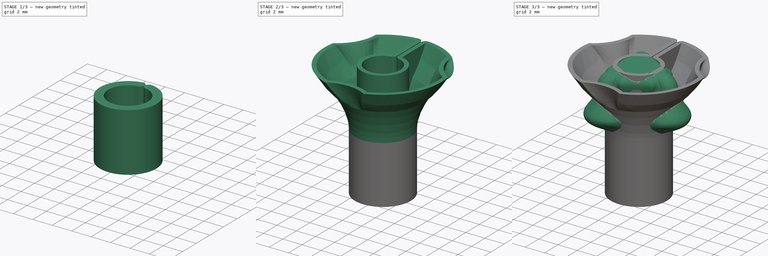
[diagram: build sequence overview — one tinted view per stage of 3, left to right]
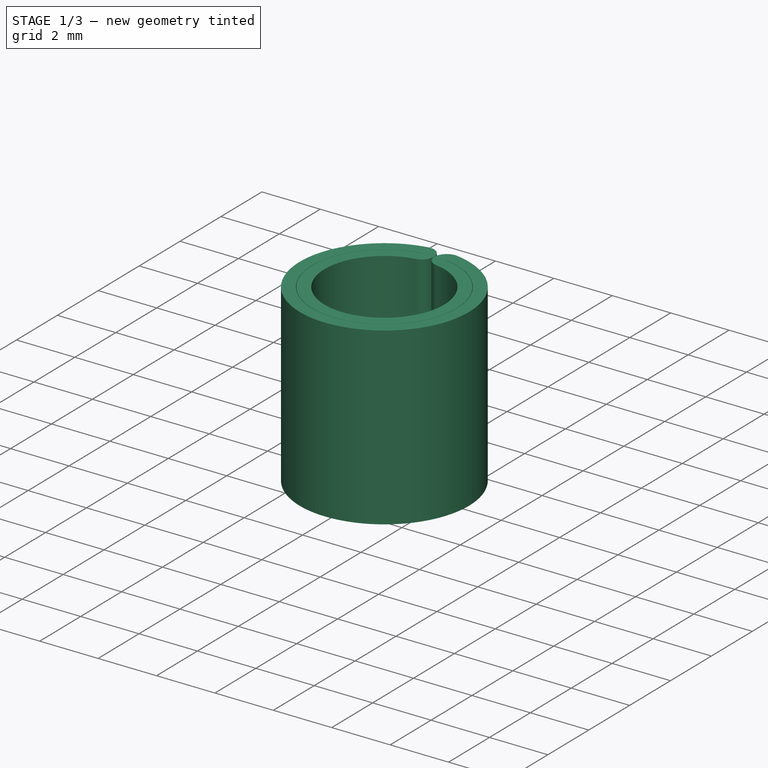
[diagram: stage 1 of 3 — iso view after this stage's code; geometry added in this stage tinted green]
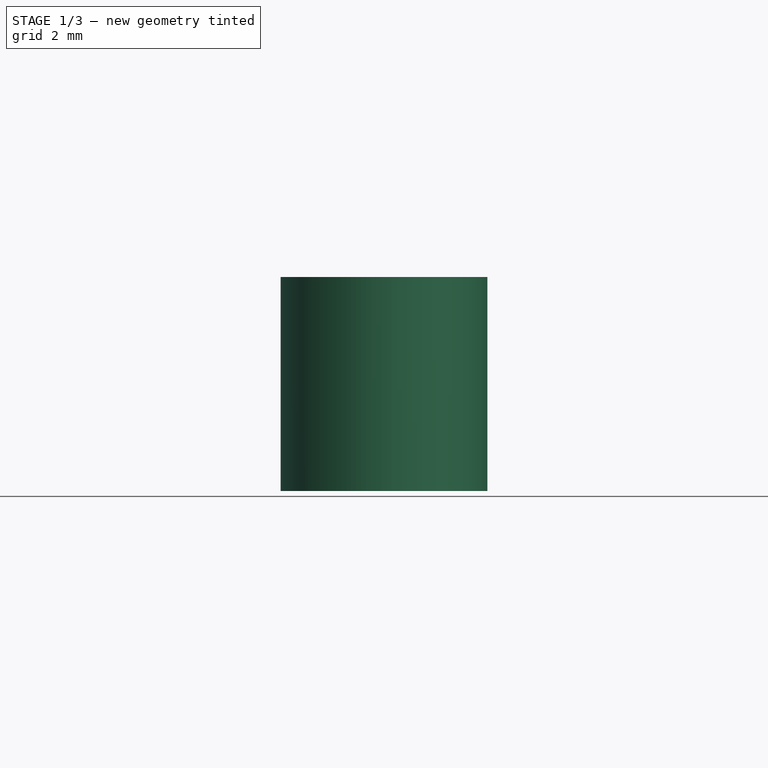
[diagram: stage 1 of 3 — front view after this stage's code; geometry added in this stage tinted green]
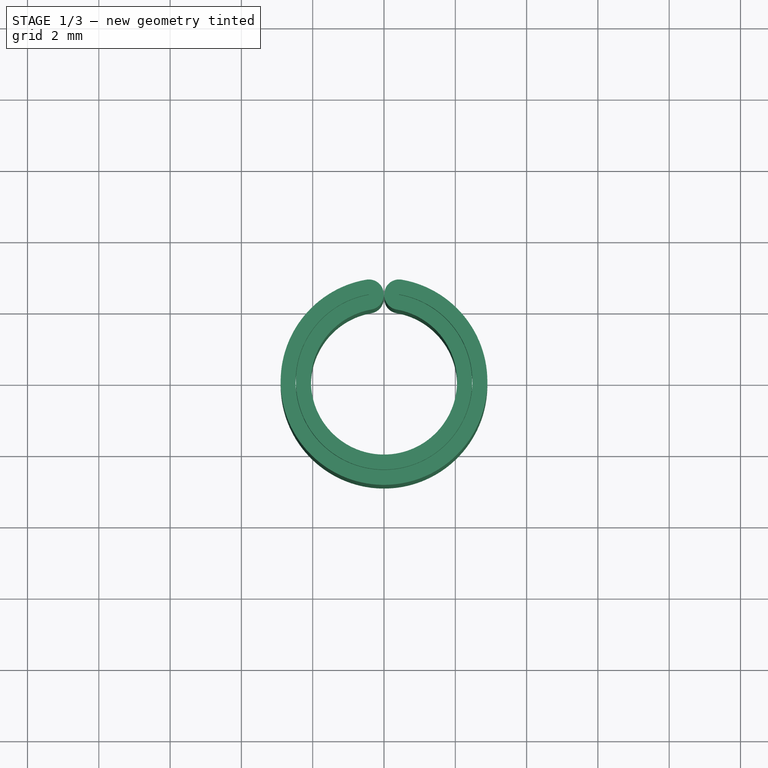
[diagram: stage 1 of 3 — top view after this stage's code; geometry added in this stage tinted green]
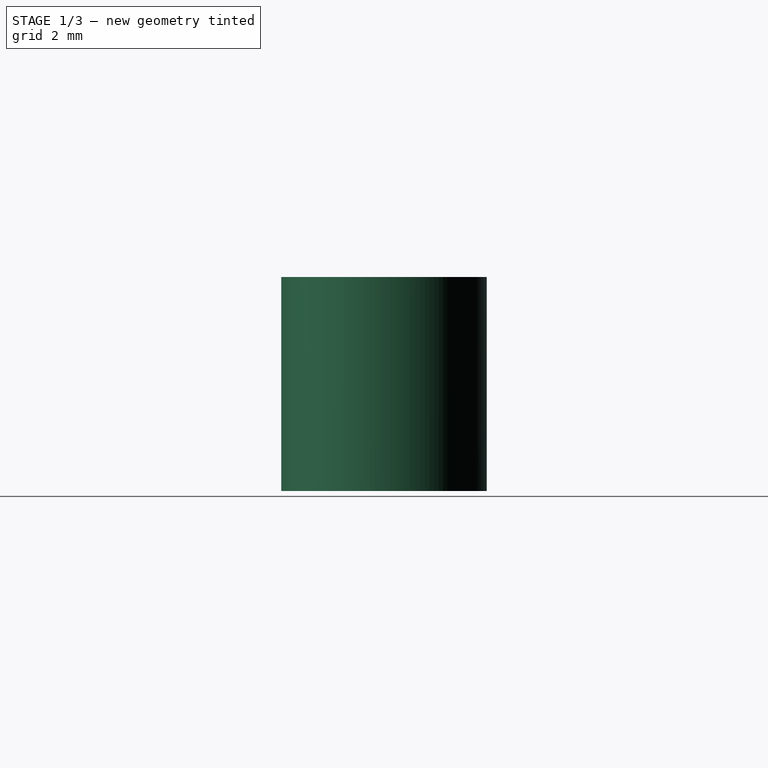
[diagram: stage 1 of 3 — right view after this stage's code; geometry added in this stage tinted green]
FCSTD DOCUMENT  (FreeCAD 1.2R20260113 (Git shallow))
Label: BIC Pen
License: Creative Commons Attribution-NonCommercial-ShareAlike 4.0
LicenseURL: https://creativecommons.org/licenses/by-nc-sa/4.0/
objects: Sketcher::SketchObject×16, PartDesign::SubShapeBinder×7, App::Point×4, PartDesign::AdditiveLoft×4, PartDesign::Body×4, PartDesign::Revolution×1, PartDesign::Pad×1
note: 61 computed .brp shape members not serialized (recipe doc carries the construction recipe); baked Part::Feature solids carry a one-line shape summary decoded from their .brp

FEATURE [PartDesign::Body] Body  label="Corps"
  AllowCompound = false
  Group = -> [Sketch,Binder,AdditiveLoft,Sketch001,Binder003,Sketch002,AdditiveLoft001,Sketch004,Binder001,Binder002,Sketch003,Sketch005]
  Origin = -> Origin
  Tip = -> AdditiveLoft001
FEATURE [App::Point] Origin003  label="Origine002"
  Role = Origin
FEATURE [Sketcher::SketchObject] Sketch006
  ArcFitTolerance = 1e-06
  AttachmentSupport = -> [Origin002]
  ExternalTypes = [0]
  FullyConstrained = false
  MakeInternals = false
  MapMode = 5
  Placement = pos=(0,0,0) rot=(0.57735,0.57735,0.57735;2.0944rad)
  sketch-geometry (10):
    g0: LineSegment StartX=15.9493 StartY=0 StartZ=0 EndX=14.0072 EndY=0 EndZ=0
    g1: LineSegment StartX=14.0072 StartY=0 StartZ=0 EndX=17.4661 EndY=12.6381 EndZ=0
    g2: ArcOfCircle CenterX=9.89089 CenterY=14.7112 CenterZ=0 NormalX=0 NormalY=0 NormalZ=1 AngleXU=0 Radius=7.85374 StartAngle=6.01604 EndAngle=6.84652
    g3: LineSegment StartX=16.5311 StartY=18.9052 StartZ=0 EndX=10.2591 EndY=28.8353 EndZ=0
    g4: ArcOfCircle CenterX=17.7718 CenterY=33.5804 CenterZ=0 NormalX=0 NormalY=0 NormalZ=1 AngleXU=0 Radius=8.88574 StartAngle=3.12108 EndAngle=3.70493
    g5: LineSegment StartX=8.88797 StartY=33.7627 StartZ=0 EndX=10.7608 EndY=33.7242 EndZ=0
    g6: ArcOfCircle CenterX=17.7718 CenterY=33.5804 CenterZ=0 NormalX=0 NormalY=0 NormalZ=1 AngleXU=0 Radius=7.01253 StartAngle=3.12108 EndAngle=3.70493
    g7: LineSegment StartX=11.8429 StartY=29.8356 StartZ=0 EndX=18.1148 EndY=19.9055 EndZ=0
    g8: ArcOfCircle CenterX=9.89089 CenterY=14.7112 CenterZ=0 NormalX=0 NormalY=0 NormalZ=1 AngleXU=0 Radius=9.72695 StartAngle=6.01604 EndAngle=6.84652
    g9: LineSegment StartX=19.2728 StartY=12.1436 StartZ=0 EndX=15.9493 EndY=0 EndZ=0
  constraints (16):
    c: PointOnObject(g0,g-1)
    c: PointOnObject(g0,g-1)
    c: Coincident(g0,g1)
    c: Tangent(g1,g2) = -1.5708
    c: Tangent(g2,g3) = -1.5708
    c: Tangent(g3,g4) = 1.5708
    c: Coincident(g4,g5)
    c: Perpendicular(g5,g6) = 4.71239
    c: Tangent(g6,g7) = -1.5708
    c: Tangent(g7,g8) = 1.5708
    c: Tangent(g8,g9) = 1.5708
    c: Coincident(g0,g9)
    c: Coincident(g4,g6)
    c: Coincident(g2,g8)
    c: Parallel(g1,g9)
    c: Parallel(g3,g7)
FEATURE [Sketcher::SketchObject] Sketch008
  ArcFitTolerance = 1e-06
  AttachmentSupport = -> [Origin002]
  ExternalGeometry = -> [Sketch006]
  ExternalTypes = [0]
  FullyConstrained = false
  MakeInternals = false
  MapMode = 5
  sketch-geometry (1):
    g0: ArcOfEllipse CenterX=0 CenterY=0 CenterZ=0 NormalX=0 NormalY=0 NormalZ=1 MajorRadius=14.0207 MinorRadius=9.9868 AngleXU=1.61523 StartAngle=6.22161 EndAngle=10.8435
  constraints (2):
    c: Coincident(g0,g-1)
    c: PointOnObject(g-3,g0)
FEATURE [Sketcher::SketchObject] Sketch009
  ArcFitTolerance = 1e-06
  AttachmentSupport = -> [Origin002]
  ExternalGeometry = -> [Sketch008]
  ExternalTypes = [0]
  FullyConstrained = false
  MakeInternals = false
  MapMode = 5
  sketch-geometry (1):
    g0: ArcOfCircle CenterX=13.781 CenterY=-1.93033 CenterZ=0 NormalX=0 NormalY=0 NormalZ=1 AngleXU=0 Radius=3.83281 StartAngle=1.41638 EndAngle=3.07726
  constraints (1):
    c: Tangent(g0,g-3) = 1.5708
FEATURE [PartDesign::Body] Body001  label="Corps001"
  AllowCompound = false
  Group = -> [Sketch006,Sketch008,Sketch009]
  Origin = -> Origin002
FEATURE [App::Point] Origin005  label="Origine004"
  Role = Origin
FEATURE [App::Point] Origin007  label="Origine006"
  Role = Origin
FEATURE [Sketcher::SketchObject] Sketch013
  ArcFitTolerance = 1e-06
  AttachmentSupport = -> [Origin006]
  ExternalTypes = [0]
  FullyConstrained = true
  MakeInternals = false
  MapMode = 5
  Placement = pos=(0,0,0) rot=(0.57735,0.57735,0.57735;2.0944rad)
  expr: Constraints[23] = 3.9 / 2
  sketch-geometry (10):
    g0: LineSegment StartX=2.5 StartY=0 StartZ=0 EndX=2.5 EndY=-1.5 EndZ=0
    g1: ArcOfCircle CenterX=1.5 CenterY=-1.5 CenterZ=0 NormalX=0 NormalY=0 NormalZ=1 AngleXU=0 Radius=1 StartAngle=6.05542 EndAngle=6.28319
    g2: LineSegment StartX=2.47417 StartY=-1.7258 StartZ=0 EndX=0.681921 EndY=-9.45806 EndZ=0
    g3: ArcOfCircle CenterX=0 CenterY=-9.3 CenterZ=0 NormalX=0 NormalY=0 NormalZ=1 AngleXU=0 Radius=0.7 StartAngle=4.71239 EndAngle=6.05542
    g4: LineSegment StartX=-1e-16 StartY=-10 StartZ=0 EndX=0 EndY=122 EndZ=0
    g5: LineSegment StartX=0 StartY=122 StartZ=0 EndX=1.5 EndY=122 EndZ=0
    g6: LineSegment StartX=1.5 StartY=122 StartZ=0 EndX=1.5 EndY=9 EndZ=0
    g7: LineSegment StartX=1.5 StartY=9 StartZ=0 EndX=1.95 EndY=9 EndZ=0
    g8: LineSegment StartX=1.95 StartY=9 StartZ=0 EndX=1.95 EndY=0 EndZ=0
    g9: LineSegment StartX=1.95 StartY=0 StartZ=0 EndX=2.5 EndY=0 EndZ=0
  constraints (29):
    c: PointOnObject(g0,g-1)
    c: Vertical(g0)
    c: Tangent(g0,g1) = 1.5708
    c: Tangent(g1,g2) = 1.5708
    c: Tangent(g2,g3) = 1.5708
    c: PointOnObject(g3,g-2)
    c: PointOnObject(g4,g-2)
    c: Coincident(g4,g5)
    c: Coincident(g5,g6)
    c: Vertical(g6)
    c: Coincident(g6,g7)
    c: Horizontal(g7)
    c: Coincident(g7,g8)
    c: Coincident(g8,g9)
    c: Coincident(g9,g0)
    c: Horizontal(g9)
    c: Vertical(g8)
    c: Distance(g8,g8) = 9
    c: Distance(g4,g-1) = 122
    c: Horizontal(g5)
    c: Coincident(g3,g4)
    c: PointOnObject(g3,g4)
    c: Distance(g6,g4) = 1.5
    c: Distance(g7,g4) = 1.95
    c: Distance(g0,g-1) = 2.5
    c: Radius(g3) = 0.7
    c: Distance(g3,g-1) = 10
    c: Distance(g0,g0) = 1.5
    c: Radius(g1) = 1
FEATURE [PartDesign::Revolution] Revolution
  Angle = 360
  Angle2 = 0
  Axis = (0,0,1)
  Base = (0,0,0)
  FuseOrder = 0
  Profile = -> Sketch013
  ReferenceAxis = -> Sketch013 [V_Axis]
  Refine = true
  Reversed = true
  Suppressed = false
  Type = 0
FEATURE [PartDesign::Body] Body003  label="Corps003"
  AllowCompound = false
  Group = -> [Sketch013,Revolution]
  Origin = -> Origin006
  Tip = -> Revolution
FEATURE [PartDesign::SubShapeBinder] Binder004  label="Mine"
  BindCopyOnChange = 0
  BindMode = 0
  ClaimChildren = false
  Context = -> Body002 [Binder004.]
  Fuse = false
  MakeFace = true
  OffsetFill = false
  OffsetIntersection = false
  OffsetJoinType = 0
  OffsetOpenResult = false
  PartialLoad = false
  Refine = true
  Relative = true
  Support = -> [Body003]
  _Version = 2
FEATURE [Sketcher::SketchObject] Sketch014
  ArcFitTolerance = 1e-06
  AttachmentSupport = -> [Origin004]
  ExternalGeometry = -> [Binder004]
  ExternalTypes = [0]
  FullyConstrained = true
  MakeInternals = false
  MapMode = 5
  sketch-geometry (12):
    g0: ArcOfCircle CenterX=0 CenterY=0 CenterZ=0 NormalX=0 NormalY=0 NormalZ=1 AngleXU=0 Radius=2.05 StartAngle=1.74372 EndAngle=7.68106
    g1: ArcOfCircle CenterX=0 CenterY=0 CenterZ=0 NormalX=0 NormalY=0 NormalZ=1 AngleXU=0 Radius=2.89985 StartAngle=1.74303 EndAngle=7.68175
    g2: ArcOfCircle CenterX=0 CenterY=0 CenterZ=0 NormalX=0 NormalY=0 NormalZ=1 AngleXU=0 Radius=2.47985 StartAngle=1.74303 EndAngle=7.68175
    g3: ArcOfCircle CenterX=0 CenterY=0 CenterZ=0 NormalX=0 NormalY=0 NormalZ=1 AngleXU=0 Radius=2.47 StartAngle=1.74372 EndAngle=7.68106
    g4: LineSegment StartX=0.425 StartY=2.43316 StartZ=0 EndX=0.425 EndY=2.44316 EndZ=0
    g5: LineSegment StartX=-0.425 StartY=2.44316 StartZ=0 EndX=-0.425 EndY=2.43316 EndZ=0
    g6: ArcOfCircle CenterX=-0.425 CenterY=2.43316 CenterZ=0 NormalX=0 NormalY=0 NormalZ=1 AngleXU=0 Radius=0.42 StartAngle=4.88531 EndAngle=6.28319
    g7: ArcOfCircle CenterX=-0.425 CenterY=2.44316 CenterZ=0 NormalX=0 NormalY=0 NormalZ=1 AngleXU=0 Radius=0.42 StartAngle=0 EndAngle=1.74303
    g8: LineSegment StartX=-0.005 StartY=2.44316 StartZ=0 EndX=-0.005 EndY=2.43316 EndZ=0
    g9: ArcOfCircle CenterX=0.425 CenterY=2.44316 CenterZ=0 NormalX=0 NormalY=0 NormalZ=1 AngleXU=0 Radius=0.42 StartAngle=1.39856 EndAngle=3.14159
    g10: ArcOfCircle CenterX=0.425 CenterY=2.43316 CenterZ=0 NormalX=0 NormalY=0 NormalZ=1 AngleXU=0 Radius=0.42 StartAngle=3.14159 EndAngle=4.53946
    g11: LineSegment StartX=0.005 StartY=2.44316 StartZ=0 EndX=0.005 EndY=2.43316 EndZ=0
  constraints (30):
    c: Coincident(g1,g0)
    c: Coincident(g2,g0)
    c: Coincident(g3,g0)
    c: Distance(g2,g1) = 0.42
    c: Vertical(g4)
    c: DistanceY(g4,g4) = 0.01
    c: Vertical(g5)
    c: Tangent(g0,g6) = 1.5708
    c: Tangent(g7,g1) = -1.5708
    c: Vertical(g8)
    c: Tangent(g8,g7) = 1.5708
    c: Tangent(g8,g6) = 1.5708
    c: Tangent(g9,g1) = -1.5708
    c: Tangent(g10,g0) = 1.5708
    c: Horizontal(g7,g9)
    c: Tangent(g10,g11) = -1.5708
    c: Tangent(g11,g9) = -1.5708
    c: Distance(g6,g10) = 0.01
    c: Coincident(g5,g2)
    c: Coincident(g5,g3)
    c: Coincident(g3,g6)
    c: PointOnObject(g7,g5)
    c: Coincident(g4,g3)
    c: Coincident(g4,g2)
    c: Vertical(g10,g9)
    c: Coincident(g10,g3)
    c: Horizontal(g2,g7)
    c: Horizontal(g0,g0)
    c: Coincident(g0,g-3)
    c: Distance(g0,g-3) = 0.1
FEATURE [Sketcher::SketchObject] Sketch015
  ArcFitTolerance = 1e-06
  AttachmentOffset = pos=(0,0,1) rot=(0,0,1;0rad)
  ExternalGeometry = -> [Sketch014]
  ExternalTypes = [0,0]
  FullyConstrained = true
  MakeInternals = false
  MapMode = 5
  Placement = pos=(0,0,8) rot=(0,0,1;0rad)
  expr: Constraints[8] = 0.42 mm * 2
  sketch-geometry (12):
    g0: ArcOfCircle CenterX=0 CenterY=0 CenterZ=0 NormalX=0 NormalY=0 NormalZ=1 AngleXU=0 Radius=3.35 StartAngle=1.7319 EndAngle=7.69288
    g1: ArcOfCircle CenterX=0 CenterY=0 CenterZ=0 NormalX=0 NormalY=0 NormalZ=1 AngleXU=0 Radius=2.93 StartAngle=1.7319 EndAngle=7.69288
    g2: LineSegment StartX=-0.47 StartY=2.42487 StartZ=0 EndX=-0.47 EndY=2.89206 EndZ=0
    g3: LineSegment StartX=0.47 StartY=2.42487 StartZ=0 EndX=0.47 EndY=2.89206 EndZ=0
    g4: ArcOfCircle CenterX=-0.47 CenterY=2.89206 CenterZ=0 NormalX=0 NormalY=0 NormalZ=1 AngleXU=0 Radius=0.42 StartAngle=0 EndAngle=1.7319
    g5: LineSegment StartX=-0.05 StartY=2.89206 StartZ=0 EndX=-0.05 EndY=2.42487 EndZ=0
    g6: ArcOfCircle CenterX=-0.47 CenterY=2.42487 CenterZ=0 NormalX=0 NormalY=0 NormalZ=1 AngleXU=0 Radius=0.42 StartAngle=4.90384 EndAngle=6.28319
    g7: ArcOfCircle CenterX=0 CenterY=0 CenterZ=0 NormalX=0 NormalY=0 NormalZ=1 AngleXU=0 Radius=2.47 StartAngle=1.76225 EndAngle=7.66253
    g8: ArcOfCircle CenterX=0.47 CenterY=2.89206 CenterZ=0 NormalX=0 NormalY=0 NormalZ=1 AngleXU=0 Radius=0.42 StartAngle=1.40969 EndAngle=3.14159
    g9: ArcOfCircle CenterX=0.47 CenterY=2.42487 CenterZ=0 NormalX=0 NormalY=0 NormalZ=1 AngleXU=0 Radius=0.42 StartAngle=3.14159 EndAngle=4.52094
    g10: LineSegment StartX=0.05 StartY=2.42487 StartZ=0 EndX=0.05 EndY=2.89206 EndZ=0
    g11: ArcOfCircle CenterX=0 CenterY=0 CenterZ=0 NormalX=0 NormalY=0 NormalZ=1 AngleXU=0 Radius=2.05 StartAngle=1.76225 EndAngle=7.66253
  constraints (29):
    c: Coincident(g0,g-1)
    c: Coincident(g1,g0)
    c: Coincident(g2,g1)
    c: Vertical(g2)
    c: Coincident(g3,g1)
    c: Symmetric(g2,g3,g-2)
    c: Coincident(g4,g1)
    c: Tangent(g4,g0) = -1.5708
    c: Diameter(g4) = 0.84
    c: Vertical(g5)
    c: Tangent(g6,g5) = 1.5708
    c: Tangent(g5,g4) = 1.5708
    c: Coincident(g2,g6)
    c: Coincident(g7,g0)
    c: Coincident(g7,g2)
    c: Coincident(g8,g1)
    c: Coincident(g9,g3)
    c: Coincident(g10,g8)
    c: Symmetric(g4,g8,g-2)
    c: Symmetric(g6,g9,g-2)
    c: Distance(g4,g8) = 0.1
    c: Tangent(g10,g9) = 1.5708
    c: Tangent(g8,g0) = -1.5708
    c: Horizontal(g7,g3)
    c: Coincident(g11,g0)
    c: PointOnObject(g9,g-3)
    c: Tangent(g11,g6) = 1.5708
    c: Vertical(g9,g11)
    c: Distance(g11,g0) = 1.3
FEATURE [Sketcher::SketchObject] Sketch010
  ArcFitTolerance = 1e-06
  AttachmentOffset = pos=(0,0,9) rot=(0,0,1;0rad)
  AttachmentSupport = -> [Origin004]
  ExternalGeometry = -> [Sketch015]
  ExternalTypes = [0,0,0]
  FullyConstrained = true
  MakeInternals = false
  MapMode = 5
  Placement = pos=(0,0,9) rot=(0,0,1;0rad)
  sketch-geometry (12):
    g0: ArcOfCircle CenterX=0 CenterY=0 CenterZ=0 NormalX=0 NormalY=0 NormalZ=1 AngleXU=0 Radius=3.85 StartAngle=1.70826 EndAngle=7.71652
    g1: ArcOfCircle CenterX=0 CenterY=0 CenterZ=0 NormalX=0 NormalY=0 NormalZ=1 AngleXU=0 Radius=3.43 StartAngle=1.70826 EndAngle=7.71652
    g2: ArcOfCircle CenterX=0 CenterY=0 CenterZ=0 NormalX=0 NormalY=0 NormalZ=1 AngleXU=0 Radius=2.47 StartAngle=1.76225 EndAngle=7.66253
    g3: LineSegment StartX=0.47 StartY=2.42487 StartZ=0 EndX=0.47 EndY=3.39765 EndZ=0
    g4: LineSegment StartX=-0.47 StartY=3.39765 StartZ=0 EndX=-0.47 EndY=2.42487 EndZ=0
    g5: ArcOfCircle CenterX=-0.47 CenterY=2.42487 CenterZ=0 NormalX=0 NormalY=0 NormalZ=1 AngleXU=0 Radius=0.42 StartAngle=4.90384 EndAngle=6.28319
    g6: ArcOfCircle CenterX=-0.47 CenterY=3.39765 CenterZ=0 NormalX=0 NormalY=0 NormalZ=1 AngleXU=0 Radius=0.42 StartAngle=0 EndAngle=1.70826
    g7: LineSegment StartX=-0.05 StartY=3.39765 StartZ=0 EndX=-0.05 EndY=2.42487 EndZ=0
    g8: ArcOfCircle CenterX=0.47 CenterY=3.39765 CenterZ=0 NormalX=0 NormalY=0 NormalZ=1 AngleXU=0 Radius=0.42 StartAngle=1.43334 EndAngle=3.14159
    g9: ArcOfCircle CenterX=0.47 CenterY=2.42487 CenterZ=0 NormalX=0 NormalY=0 NormalZ=1 AngleXU=0 Radius=0.42 StartAngle=3.14159 EndAngle=4.52094
    g10: LineSegment StartX=0.05 StartY=3.39765 StartZ=0 EndX=0.05 EndY=2.42487 EndZ=0
    g11: ArcOfCircle CenterX=0 CenterY=0 CenterZ=0 NormalX=0 NormalY=0 NormalZ=1 AngleXU=0 Radius=2.05 StartAngle=1.76225 EndAngle=7.66253
  constraints (31):
    c: Coincident(g1,g0)
    c: Coincident(g2,g0)
    c: Vertical(g3)
    c: Vertical(g4)
    c: Tangent(g6,g0) = -1.5708
    c: Vertical(g7)
    c: Tangent(g7,g6) = 1.5708
    c: Tangent(g7,g5) = 1.5708
    c: Tangent(g8,g0) = -1.5708
    c: Horizontal(g6,g8)
    c: Tangent(g9,g10) = -1.5708
    c: Tangent(g10,g8) = -1.5708
    c: Distance(g5,g9) = 0.1
    c: Coincident(g4,g1)
    c: Coincident(g4,g2)
    c: Coincident(g2,g5)
    c: PointOnObject(g6,g4)
    c: Coincident(g3,g2)
    c: Coincident(g3,g1)
    c: Vertical(g9,g8)
    c: Coincident(g9,g2)
    c: Horizontal(g1,g6)
    c: Horizontal(g5,g9)
    c: Coincident(g0,g-1)
    c: Vertical(g10)
    c: Coincident(g11,g0)
    c: PointOnObject(g11,g-3)
    c: Coincident(g11,g9)
    c: Distance(g0,g-4) = 0.5
    c: Equal(g8,g-5)
    c: Tangent(g11,g5) = 1.5708
FEATURE [PartDesign::SubShapeBinder] Binder005
  BindCopyOnChange = 0
  BindMode = 0
  ClaimChildren = false
  Context = -> Body002 [Binder005.]
  Fuse = false
  MakeFace = true
  OffsetFill = false
  OffsetIntersection = false
  OffsetJoinType = 0
  OffsetOpenResult = false
  PartialLoad = false
  Placement = pos=(0,0,6) rot=(0,0,1;0rad)
  Refine = true
  Relative = true
  Support = -> [Sketch014]
  _Version = 2
FEATURE [PartDesign::Pad] Pad
  Direction = (0,0,1)
  Length = 10
  Length2 = 10
  Profile = -> Sketch014
  ReferenceAxis = -> Sketch014 [N_Axis]
  Refine = true
  SideType = 0
  Suppressed = false
  Type = 5
  Type2 = 0
  UpToShape = -> [Binder005]
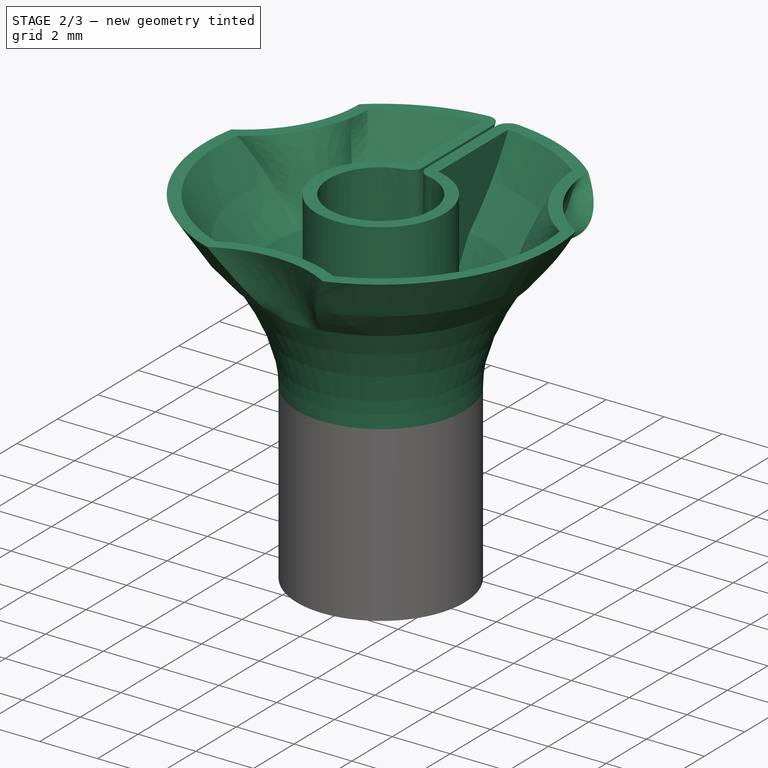
[diagram: stage 2 of 3 — iso view after this stage's code; geometry added in this stage tinted green]
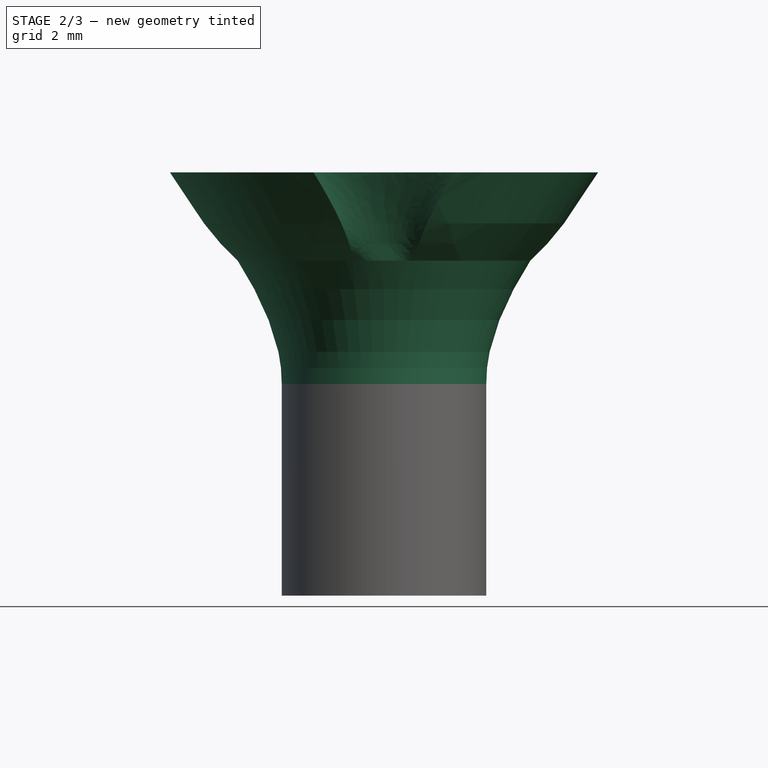
[diagram: stage 2 of 3 — front view after this stage's code; geometry added in this stage tinted green]
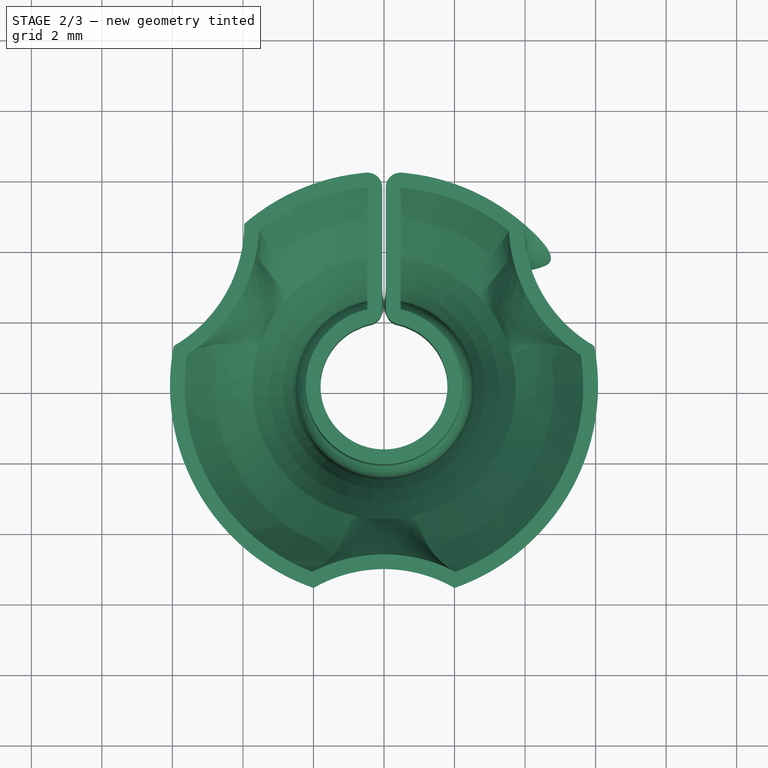
[diagram: stage 2 of 3 — top view after this stage's code; geometry added in this stage tinted green]
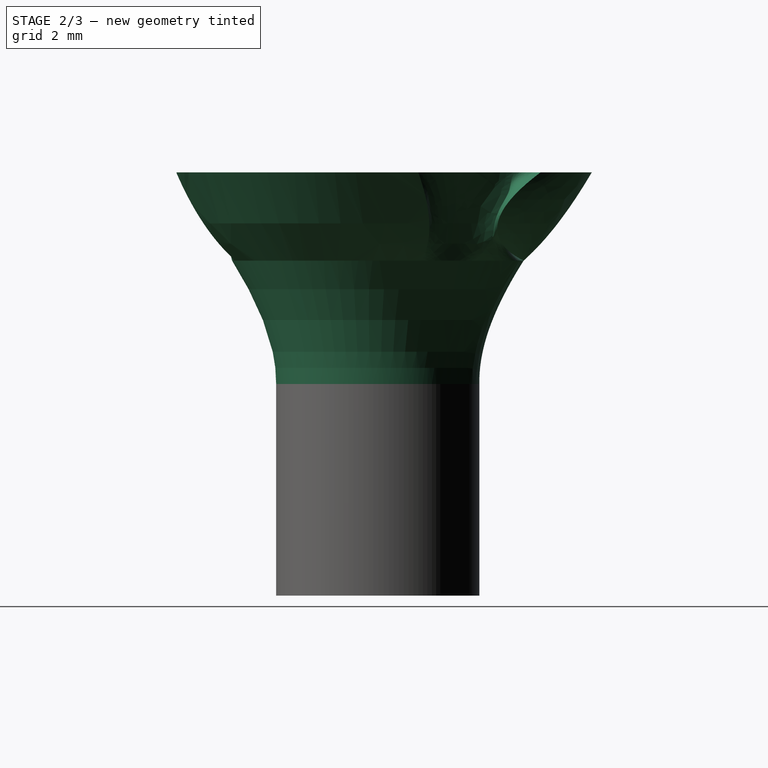
[diagram: stage 2 of 3 — right view after this stage's code; geometry added in this stage tinted green]
FEATURE [PartDesign::SubShapeBinder] Binder006
  BindCopyOnChange = 0
  BindMode = 0
  ClaimChildren = false
  Context = -> Body002 [Binder006.]
  Fuse = false
  MakeFace = true
  OffsetFill = false
  OffsetIntersection = false
  OffsetJoinType = 0
  OffsetOpenResult = false
  PartialLoad = false
  Placement = pos=(0,0,0.1) rot=(0,0,1;0rad)
  Refine = true
  Relative = true
  Support = -> [Binder005]
  _Version = 2
FEATURE [Sketcher::SketchObject] Sketch016
  ArcFitTolerance = 1e-06
  AttachmentOffset = pos=(0,0,0.5) rot=(0,0,1;0rad)
  AttachmentSupport = -> [Sketch010]
  ExternalGeometry = -> [Sketch010,Binder004]
  ExternalTypes = [0,0,0,0]
  FullyConstrained = true
  MakeInternals = false
  MapMode = 2
  Placement = pos=(0,0,9.5) rot=(0,0,1;0rad)
  expr: Constraints[12] = Sketch010.Constraints[12]
  sketch-geometry (12):
    g0: ArcOfCircle CenterX=0 CenterY=0 CenterZ=0 NormalX=0 NormalY=0 NormalZ=1 AngleXU=0 Radius=4.15 StartAngle=1.69714 EndAngle=7.72764
    g1: ArcOfCircle CenterX=0 CenterY=0 CenterZ=0 NormalX=0 NormalY=0 NormalZ=1 AngleXU=0 Radius=3.73 StartAngle=1.69714 EndAngle=7.72764
    g2: ArcOfCircle CenterX=0 CenterY=0 CenterZ=0 NormalX=0 NormalY=0 NormalZ=1 AngleXU=0 Radius=2.22 StartAngle=1.78412 EndAngle=7.64066
    g3: LineSegment StartX=0.47 StartY=2.16968 StartZ=0 EndX=0.47 EndY=3.70027 EndZ=0
    g4: LineSegment StartX=-0.47 StartY=3.70027 StartZ=0 EndX=-0.47 EndY=2.16968 EndZ=0
    g5: ArcOfCircle CenterX=-0.47 CenterY=2.16968 CenterZ=0 NormalX=0 NormalY=0 NormalZ=1 AngleXU=0 Radius=0.42 StartAngle=4.92572 EndAngle=6.28319
    g6: ArcOfCircle CenterX=-0.47 CenterY=3.70027 CenterZ=0 NormalX=0 NormalY=0 NormalZ=1 AngleXU=0 Radius=0.42 StartAngle=0 EndAngle=1.69714
    g7: LineSegment StartX=-0.05 StartY=3.70027 StartZ=0 EndX=-0.05 EndY=2.16968 EndZ=0
    g8: ArcOfCircle CenterX=0.47 CenterY=3.70027 CenterZ=0 NormalX=0 NormalY=0 NormalZ=1 AngleXU=0 Radius=0.42 StartAngle=1.44446 EndAngle=3.14159
    g9: ArcOfCircle CenterX=0.47 CenterY=2.16968 CenterZ=0 NormalX=0 NormalY=0 NormalZ=1 AngleXU=0 Radius=0.42 StartAngle=3.14159 EndAngle=4.49906
    g10: LineSegment StartX=0.05 StartY=3.70027 StartZ=0 EndX=0.05 EndY=2.16968 EndZ=0
    g11: ArcOfCircle CenterX=0 CenterY=0 CenterZ=0 NormalX=0 NormalY=0 NormalZ=1 AngleXU=0 Radius=1.8 StartAngle=1.78412 EndAngle=7.64066
  constraints (30):
    c: Coincident(g1,g0)
    c: Coincident(g2,g0)
    c: Vertical(g3)
    c: Vertical(g4)
    c: Tangent(g6,g0) = -1.5708
    c: Vertical(g7)
    c: Tangent(g7,g6) = 1.5708
    c: Tangent(g7,g5) = 1.5708
    c: Tangent(g8,g0) = -1.5708
    c: Horizontal(g6,g8)
    c: Tangent(g9,g10) = -1.5708
    c: Tangent(g10,g8) = -1.5708
    c: Distance(g5,g9) = 0.1
    c: Coincident(g4,g1)
    c: Coincident(g4,g2)
    c: Coincident(g2,g5)
    c: PointOnObject(g6,g4)
    c: Coincident(g3,g2)
    c: Coincident(g3,g1)
    c: Vertical(g9,g8)
    c: Coincident(g9,g2)
    c: Horizontal(g1,g6)
    c: Equal(g6,g8)
    c: Equal(g-3,g9)
    c: Distance(g-4,g0) = 0.3
    c: Coincident(g0,g-5)
    c: Coincident(g11,g0)
    c: Distance(g11,g-5) = 0.3
    c: Tangent(g11,g5) = 1.5708
    c: Tangent(g9,g11) = 1.5708
FEATURE [Sketcher::SketchObject] Sketch011
  ArcFitTolerance = 1e-06
  AttachmentOffset = pos=(0,0,1) rot=(0,0,1;0rad)
  AttachmentSupport = -> [Sketch010]
  ExternalGeometry = -> [Sketch016]
  ExternalTypes = [0,0,0,0]
  FullyConstrained = true
  MakeInternals = false
  MapMode = 2
  Placement = pos=(0,0,10) rot=(0,0,1;0rad)
  expr: Constraints[15] = Sketch010.Constraints[12]
  sketch-geometry (28):
    g0: ArcOfCircle CenterX=0 CenterY=0 CenterZ=0 NormalX=0 NormalY=0 NormalZ=1 AngleXU=0 Radius=1.8 StartAngle=1.78412 EndAngle=7.64066
    g1: ArcOfCircle CenterX=0 CenterY=0 CenterZ=0 NormalX=0 NormalY=0 NormalZ=1 AngleXU=0 Radius=4.65 StartAngle=1.68214 EndAngle=2.40125
    g2: ArcOfCircle CenterX=0 CenterY=0 CenterZ=0 NormalX=0 NormalY=0 NormalZ=1 AngleXU=0 Radius=4.23 StartAngle=1.68214 EndAngle=2.36559
    g3: ArcOfCircle CenterX=0 CenterY=0 CenterZ=0 NormalX=0 NormalY=0 NormalZ=1 AngleXU=0 Radius=2.22 StartAngle=1.78412 EndAngle=7.64066
    g4: LineSegment StartX=0.47 StartY=2.16968 StartZ=0 EndX=0.47 EndY=4.20381 EndZ=0
    g5: LineSegment StartX=-0.47 StartY=4.20381 StartZ=0 EndX=-0.47 EndY=2.16968 EndZ=0
    g6: ArcOfCircle CenterX=-0.47 CenterY=2.16968 CenterZ=0 NormalX=0 NormalY=0 NormalZ=1 AngleXU=0 Radius=0.42 StartAngle=4.92572 EndAngle=6.28319
    g7: ArcOfCircle CenterX=-0.47 CenterY=4.20381 CenterZ=0 NormalX=0 NormalY=0 NormalZ=1 AngleXU=0 Radius=0.42 StartAngle=0 EndAngle=1.68214
    g8: LineSegment StartX=-0.05 StartY=4.20381 StartZ=0 EndX=-0.05 EndY=2.16968 EndZ=0
    g9: ArcOfCircle CenterX=0.47 CenterY=4.20381 CenterZ=0 NormalX=0 NormalY=0 NormalZ=1 AngleXU=0 Radius=0.42 StartAngle=1.45946 EndAngle=3.14159
    g10: ArcOfCircle CenterX=0.47 CenterY=2.16968 CenterZ=0 NormalX=0 NormalY=0 NormalZ=1 AngleXU=0 Radius=0.42 StartAngle=3.14159 EndAngle=4.49906
    g11: LineSegment StartX=0.05 StartY=4.20381 StartZ=0 EndX=0.05 EndY=2.16968 EndZ=0
    g12: ArcOfCircle CenterX=5.43279 CenterY=3.13663 CenterZ=0 NormalX=0 NormalY=0 NormalZ=1 AngleXU=0 Radius=2 StartAngle=3.14159 EndAngle=4.18879
    g13: ArcOfCircle CenterX=5.43279 CenterY=3.13663 CenterZ=0 NormalX=0 NormalY=0 NormalZ=1 AngleXU=0 Radius=2.42 StartAngle=3.21348 EndAngle=4.11691
    g14: ArcOfCircle CenterX=0 CenterY=-6.27325 CenterZ=0 NormalX=0 NormalY=0 NormalZ=1 AngleXU=0 Radius=2.42 StartAngle=1.11908 EndAngle=2.02251
    g15: ArcOfCircle CenterX=0 CenterY=-6.27325 CenterZ=0 NormalX=0 NormalY=0 NormalZ=1 AngleXU=0 Radius=2 StartAngle=1.0472 EndAngle=2.0944
    g16: ArcOfCircle CenterX=-5.43279 CenterY=3.13663 CenterZ=0 NormalX=0 NormalY=0 NormalZ=1 AngleXU=0 Radius=2.42 StartAngle=5.30787 EndAngle=6.2113
    g17: ArcOfCircle CenterX=-5.43279 CenterY=3.13663 CenterZ=0 NormalX=0 NormalY=0 NormalZ=1 AngleXU=0 Radius=2 StartAngle=5.23599 EndAngle=6.28319
    g18: LineSegment [constr] StartX=-5.43279 StartY=3.13663 StartZ=0 EndX=5.43279 EndY=3.13663 EndZ=0
    g19: LineSegment [constr] StartX=5.43279 StartY=3.13663 StartZ=0 EndX=0 EndY=-6.27325 EndZ=0
    g20: LineSegment [constr] StartX=0 StartY=-6.27325 StartZ=0 EndX=-5.43279 EndY=3.13663 EndZ=0
    g21: ArcOfCircle [constr] CenterX=-3.01904 CenterY=2.96281 CenterZ=0 NormalX=0 NormalY=0 NormalZ=1 AngleXU=0 Radius=0.42 StartAngle=2.36559 EndAngle=3.06971
    g22: ArcOfCircle CenterX=0 CenterY=0 CenterZ=0 NormalX=0 NormalY=0 NormalZ=1 AngleXU=0 Radius=4.23 StartAngle=2.87039 EndAngle=4.45999
    g23: ArcOfCircle CenterX=0 CenterY=0 CenterZ=0 NormalX=0 NormalY=0 NormalZ=1 AngleXU=0 Radius=4.65 StartAngle=2.83474 EndAngle=4.49564
    g24: ArcOfCircle CenterX=0 CenterY=0 CenterZ=0 NormalX=0 NormalY=0 NormalZ=1 AngleXU=0 Radius=4.65 StartAngle=4.92914 EndAngle=6.59004
    g25: ArcOfCircle CenterX=0 CenterY=0 CenterZ=0 NormalX=0 NormalY=0 NormalZ=1 AngleXU=0 Radius=4.23 StartAngle=4.96479 EndAngle=6.55438
    g26: ArcOfCircle CenterX=0 CenterY=0 CenterZ=0 NormalX=0 NormalY=0 NormalZ=1 AngleXU=0 Radius=4.65 StartAngle=0.740346 EndAngle=1.45946
    g27: ArcOfCircle CenterX=0 CenterY=0 CenterZ=0 NormalX=0 NormalY=0 NormalZ=1 AngleXU=0 Radius=4.23 StartAngle=0.775998 EndAngle=1.45946
  constraints (76):
    c: Coincident(g1,g0)
    c: Coincident(g2,g0)
    c: Coincident(g3,g0)
    c: Vertical(g4)
    c: Vertical(g5)
    c: Tangent(g0,g6) = 1.5708
    c: Tangent(g7,g1) = -1.5708
    c: Vertical(g8)
    c: Tangent(g8,g7) = 1.5708
    c: Tangent(g8,g6) = 1.5708
    c: Tangent(g9,g26) = -1.5708
    c: Tangent(g10,g0) = 1.5708
    c: Horizontal(g7,g9)
    c: Tangent(g10,g11) = -1.5708
    c: Tangent(g11,g9) = -1.5708
    c: Distance(g6,g10) = 0.1
    c: Coincident(g5,g2)
    c: Coincident(g5,g3)
    c: Coincident(g3,g6)
    c: PointOnObject(g7,g5)
    c: Coincident(g4,g3)
    c: Coincident(g4,g27)
    c: Coincident(g10,g3)
    c: Horizontal(g2,g7)
    c: Horizontal(g0,g0)
    c: Coincident(g0,g-1)
    c: Coincident(g13,g12)
    c: PointOnObject(g14,g-2)
    c: Coincident(g15,g14)
    c: Coincident(g17,g16)
    c: Coincident(g18,g16)
    c: Coincident(g18,g12)
    c: Horizontal(g18)
    c: Coincident(g19,g12)
    c: Coincident(g19,g14)
    c: Coincident(g20,g14)
    c: Coincident(g20,g16)
    c: Equal(g20,g18)
    c: Equal(g18,g19)
    c: PointOnObject(g15,g19)
    c: PointOnObject(g12,g19)
    c: PointOnObject(g12,g18)
    c: PointOnObject(g17,g20)
    c: Coincident(g21,g16)
    c: Tangent(g21,g17) = 1.5708
    c: Coincident(g16,g2)
    c: Coincident(g16,g22)
    c: Coincident(g2,g22)
    c: Coincident(g17,g23)
    c: Coincident(g17,g1)
    c: Tangent(g21,g1) = -1.5708
    c: Coincident(g1,g23)
    c: Coincident(g15,g23)
    c: Coincident(g15,g24)
    c: Coincident(g23,g24)
    c: Coincident(g14,g22)
    c: Coincident(g14,g25)
    c: Coincident(g22,g25)
    c: Coincident(g12,g26)
    c: Coincident(g12,g24)
    c: Coincident(g24,g26)
    c: Coincident(g13,g27)
    c: Coincident(g13,g25)
    c: Coincident(g25,g27)
    c: Coincident(g9,g4)
    c: Vertical(g11)
    c: Equal(g17,g12)
    c: Equal(g16,g13)
    c: Equal(g14,g16)
    c: Equal(g15,g17)
    c: Equal(g22,g2)
    c: Equal(g25,g22)
    c: Radius(g17) = 2
    c: PointOnObject(g0,g-3)
    c: Equal(g-4,g10)
    c: Distance(g-6,g26) = 0.5
FEATURE [Sketcher::SketchObject] Sketch012
  ArcFitTolerance = 1e-06
  AttachmentOffset = pos=(0,0,2) rot=(0,0,1;0rad)
  AttachmentSupport = -> [Sketch011]
  ExternalGeometry = -> [Sketch011]
  ExternalTypes = [0,0,0]
  FullyConstrained = true
  MakeInternals = false
  MapMode = 2
  Placement = pos=(0,0,12) rot=(0,0,1;0rad)
  expr: Constraints[16] = Sketch011.Constraints[15]
  sketch-geometry (28):
    g0: ArcOfCircle CenterX=0 CenterY=0 CenterZ=0 NormalX=0 NormalY=0 NormalZ=1 AngleXU=0 Radius=1.8 StartAngle=1.78412 EndAngle=7.64066
    g1: ArcOfCircle CenterX=0 CenterY=0 CenterZ=0 NormalX=0 NormalY=0 NormalZ=1 AngleXU=0 Radius=6.07 StartAngle=1.65408 EndAngle=2.28223
    g2: ArcOfCircle CenterX=0 CenterY=0 CenterZ=0 NormalX=0 NormalY=0 NormalZ=1 AngleXU=0 Radius=5.65 StartAngle=1.65408 EndAngle=2.24968
    g3: ArcOfCircle CenterX=0 CenterY=0 CenterZ=0 NormalX=0 NormalY=0 NormalZ=1 AngleXU=0 Radius=2.22 StartAngle=1.78412 EndAngle=7.64066
    g4: LineSegment StartX=0.47 StartY=2.16968 StartZ=0 EndX=0.47 EndY=5.63042 EndZ=0
    g5: LineSegment StartX=-0.47 StartY=5.63042 StartZ=0 EndX=-0.47 EndY=2.16968 EndZ=0
    g6: ArcOfCircle CenterX=-0.47 CenterY=2.16968 CenterZ=0 NormalX=0 NormalY=0 NormalZ=1 AngleXU=0 Radius=0.42 StartAngle=4.92572 EndAngle=6.28319
    g7: ArcOfCircle CenterX=-0.47 CenterY=5.63042 CenterZ=0 NormalX=0 NormalY=0 NormalZ=1 AngleXU=0 Radius=0.42 StartAngle=3e-16 EndAngle=1.65408
    g8: LineSegment StartX=-0.05 StartY=5.63042 StartZ=0 EndX=-0.05 EndY=2.16968 EndZ=0
    g9: ArcOfCircle CenterX=0.47 CenterY=5.63042 CenterZ=0 NormalX=0 NormalY=0 NormalZ=1 AngleXU=0 Radius=0.42 StartAngle=1.48751 EndAngle=3.14159
    g10: ArcOfCircle CenterX=0.47 CenterY=2.16968 CenterZ=0 NormalX=0 NormalY=0 NormalZ=1 AngleXU=0 Radius=0.42 StartAngle=3.14159 EndAngle=4.49906
    g11: LineSegment StartX=0.05 StartY=5.63042 StartZ=0 EndX=0.05 EndY=2.16968 EndZ=0
    g12: ArcOfCircle CenterX=7.96323 CenterY=4.59757 CenterZ=0 NormalX=0 NormalY=0 NormalZ=1 AngleXU=0 Radius=4 StartAngle=3.14159 EndAngle=4.18879
    g13: ArcOfCircle CenterX=7.96323 CenterY=4.59757 CenterZ=0 NormalX=0 NormalY=0 NormalZ=1 AngleXU=0 Radius=4.42 StartAngle=3.18693 EndAngle=4.14345
    g14: ArcOfCircle CenterX=0 CenterY=-9.19515 CenterZ=0 NormalX=0 NormalY=0 NormalZ=1 AngleXU=0 Radius=4.42 StartAngle=1.09254 EndAngle=2.04906
    g15: ArcOfCircle CenterX=0 CenterY=-9.19515 CenterZ=0 NormalX=0 NormalY=0 NormalZ=1 AngleXU=0 Radius=4 StartAngle=1.0472 EndAngle=2.0944
    g16: ArcOfCircle CenterX=-7.96323 CenterY=4.59757 CenterZ=0 NormalX=0 NormalY=0 NormalZ=1 AngleXU=0 Radius=4.42 StartAngle=5.28133 EndAngle=6.23785
    g17: ArcOfCircle CenterX=-7.96323 CenterY=4.59757 CenterZ=0 NormalX=0 NormalY=0 NormalZ=1 AngleXU=0 Radius=4 StartAngle=5.23599 EndAngle=6.28319
    g18: LineSegment [constr] StartX=-7.96323 StartY=4.59757 StartZ=0 EndX=7.96323 EndY=4.59757 EndZ=0
    g19: LineSegment [constr] StartX=7.96323 StartY=4.59757 StartZ=0 EndX=0 EndY=-9.19515 EndZ=0
    g20: LineSegment [constr] StartX=0 StartY=-9.19515 StartZ=0 EndX=-7.96323 EndY=4.59757 EndZ=0
    g21: ArcOfCircle [constr] CenterX=-3.54777 CenterY=4.39725 CenterZ=0 NormalX=0 NormalY=0 NormalZ=1 AngleXU=0 Radius=0.42 StartAngle=2.24968 EndAngle=3.09625
    g22: ArcOfCircle CenterX=0 CenterY=0 CenterZ=0 NormalX=0 NormalY=0 NormalZ=1 AngleXU=0 Radius=5.65 StartAngle=2.98631 EndAngle=4.34408
    g23: ArcOfCircle CenterX=0 CenterY=0 CenterZ=0 NormalX=0 NormalY=0 NormalZ=1 AngleXU=0 Radius=6.07 StartAngle=2.95376 EndAngle=4.37663
    g24: ArcOfCircle CenterX=0 CenterY=0 CenterZ=0 NormalX=0 NormalY=0 NormalZ=1 AngleXU=0 Radius=6.07 StartAngle=5.04815 EndAngle=6.47102
    g25: ArcOfCircle CenterX=0 CenterY=0 CenterZ=0 NormalX=0 NormalY=0 NormalZ=1 AngleXU=0 Radius=5.65 StartAngle=5.0807 EndAngle=6.43847
    g26: ArcOfCircle CenterX=0 CenterY=0 CenterZ=0 NormalX=0 NormalY=0 NormalZ=1 AngleXU=0 Radius=6.07 StartAngle=0.859361 EndAngle=1.48751
    g27: ArcOfCircle CenterX=0 CenterY=0 CenterZ=0 NormalX=0 NormalY=0 NormalZ=1 AngleXU=0 Radius=5.65 StartAngle=0.891913 EndAngle=1.48751
  constraints (76):
    c: Coincident(g1,g0)
    c: Coincident(g2,g0)
    c: Coincident(g3,g0)
    c: Vertical(g4)
    c: DistanceY(g4,g4) = 3.46074
    c: Vertical(g5)
    c: Tangent(g0,g6) = 1.5708
    c: Tangent(g7,g1) = -1.5708
    c: Vertical(g8)
    c: Tangent(g8,g7) = 1.5708
    c: Tangent(g8,g6) = 1.5708
    c: Tangent(g9,g26) = -1.5708
    c: Tangent(g10,g0) = 1.5708
    c: Horizontal(g7,g9)
    c: Tangent(g10,g11) = -1.5708
    c: Tangent(g11,g9) = -1.5708
    c: Distance(g6,g10) = 0.1
    c: Coincident(g5,g2)
    c: Coincident(g5,g3)
    c: Coincident(g3,g6)
    c: PointOnObject(g7,g5)
    c: Coincident(g4,g3)
    c: Coincident(g4,g27)
    c: Coincident(g10,g3)
    c: Horizontal(g2,g7)
    c: Horizontal(g0,g0)
    c: Coincident(g0,g-1)
    c: Coincident(g13,g12)
    c: PointOnObject(g14,g-2)
    c: Coincident(g15,g14)
    c: Coincident(g17,g16)
    c: Coincident(g18,g16)
    c: Coincident(g18,g12)
    c: Horizontal(g18)
    c: Coincident(g19,g12)
    c: Coincident(g19,g14)
    c: Coincident(g20,g14)
    c: Coincident(g20,g16)
    c: Equal(g20,g18)
    c: Equal(g18,g19)
    c: PointOnObject(g15,g19)
    c: PointOnObject(g12,g19)
    c: PointOnObject(g12,g18)
    c: PointOnObject(g17,g20)
    c: Coincident(g21,g16)
    c: Tangent(g21,g17) = 1.5708
    c: Coincident(g16,g2)
    c: Coincident(g16,g22)
    c: Coincident(g2,g22)
    c: Coincident(g17,g23)
    c: Coincident(g17,g1)
    c: Tangent(g21,g1) = -1.5708
    c: Coincident(g1,g23)
    c: Coincident(g15,g23)
    c: Coincident(g15,g24)
    c: Coincident(g23,g24)
    c: Coincident(g14,g22)
    c: Coincident(g14,g25)
    c: Coincident(g22,g25)
    c: Coincident(g12,g26)
    c: Coincident(g12,g24)
    c: Coincident(g24,g26)
    c: Coincident(g13,g27)
    c: Coincident(g13,g25)
    c: Coincident(g25,g27)
    c: Coincident(g9,g4)
    c: Vertical(g11)
    c: Equal(g17,g12)
    c: Equal(g16,g13)
    c: Equal(g14,g16)
    c: Equal(g15,g17)
    c: Equal(g22,g2)
    c: Equal(g25,g22)
    c: Radius(g17) = 4
    c: Coincident(g0,g-4)
    c: Distance(g13,g-5) = 1
FEATURE [PartDesign::AdditiveLoft] AdditiveLoft002
  BaseFeature = -> Pad
  Closed = false
  Profile = -> Binder005
  Refine = true
  Ruled = false
  Sections = -> [Binder006,Sketch015,Sketch010,Sketch016]
  Suppressed = false
FEATURE [PartDesign::AdditiveLoft] AdditiveLoft003
  BaseFeature = -> AdditiveLoft002
  Closed = false
  Profile = -> Sketch016
  Refine = true
  Ruled = false
  Sections = -> [Sketch011,Sketch012]
  Suppressed = false
FEATURE [PartDesign::Body] Body002  label="Corps002"
  AllowCompound = false
  Group = -> [Sketch014,Binder004,Pad,Binder005,Binder006,Sketch015,Sketch010,Sketch016,Sketch011,Sketch012,AdditiveLoft002,AdditiveLoft003]
  Origin = -> Origin004
  Tip = -> AdditiveLoft003
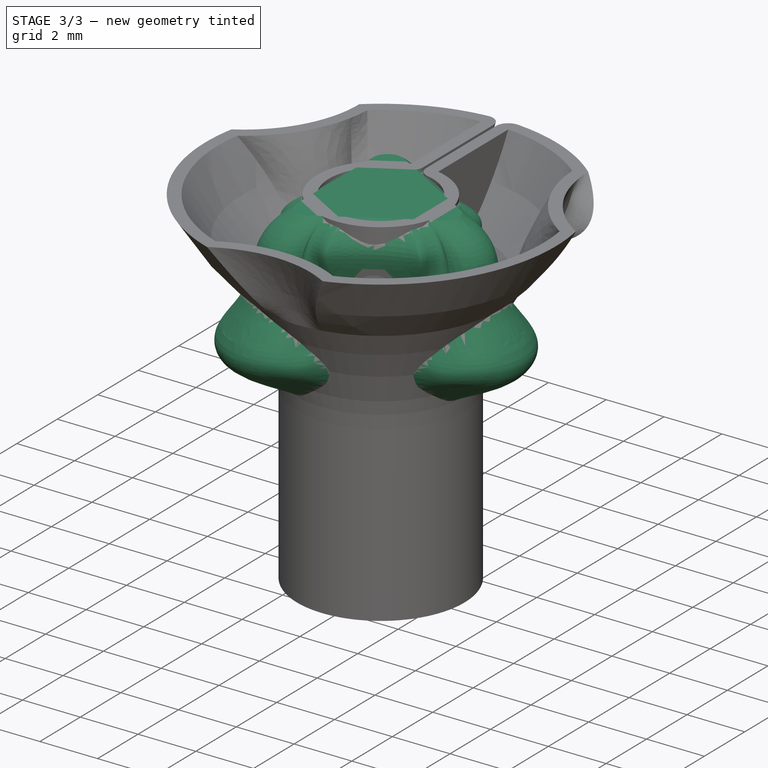
[diagram: stage 3 of 3 — iso view after this stage's code; geometry added in this stage tinted green]
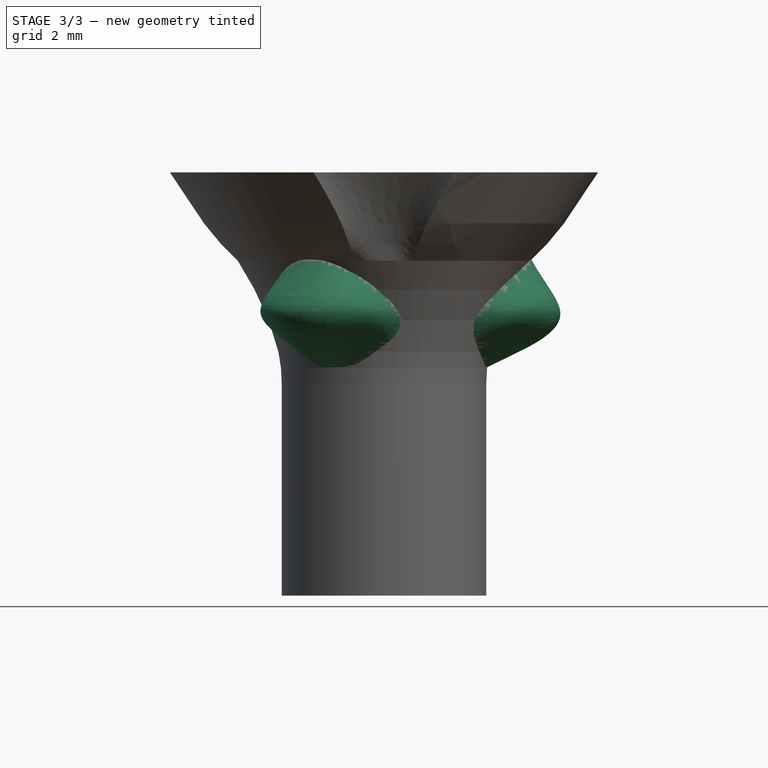
[diagram: stage 3 of 3 — front view after this stage's code; geometry added in this stage tinted green]
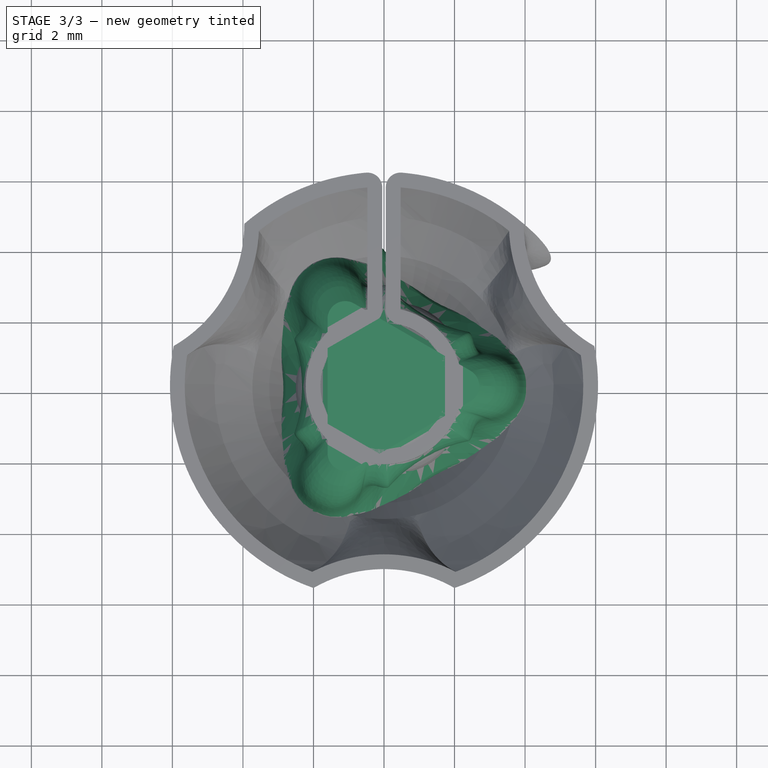
[diagram: stage 3 of 3 — top view after this stage's code; geometry added in this stage tinted green]
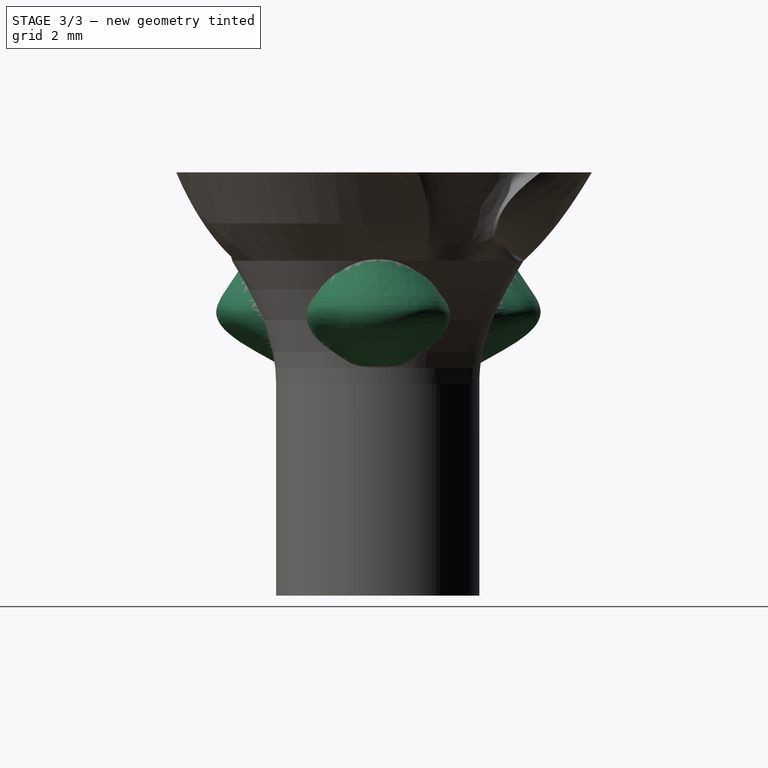
[diagram: stage 3 of 3 — right view after this stage's code; geometry added in this stage tinted green]
FEATURE [App::Point] Origin001  label="Origine"
  Role = Origin
FEATURE [Sketcher::SketchObject] Sketch
  ArcFitTolerance = 1e-06
  AttachmentSupport = -> [Origin]
  ExternalTypes = [0]
  FullyConstrained = true
  MakeInternals = false
  MapMode = 5
  sketch-geometry (2):
    g0: Circle CenterX=0 CenterY=0 CenterZ=0 NormalX=0 NormalY=0 NormalZ=1 AngleXU=0 Radius=2
    g1: Circle [constr] CenterX=0 CenterY=0 CenterZ=0 NormalX=0 NormalY=0 NormalZ=1 AngleXU=0 Radius=1.58
  constraints (4):
    c: Diameter(g0) = 4  'D'
    c: Coincident(g0,g-1)
    c: Coincident(g1,g0)
    c: Distance(g1,g0) = 0.42
FEATURE [Sketcher::SketchObject] Sketch001
  ArcFitTolerance = 1e-06
  AttachmentOffset = pos=(0,0,6) rot=(0,0,1;0rad)
  AttachmentSupport = -> [Origin]
  ExternalTypes = [0]
  FullyConstrained = true
  MakeInternals = false
  MapMode = 5
  Placement = pos=(0,0,6) rot=(0,0,1;0rad)
  sketch-geometry (1):
    g0: Circle CenterX=0 CenterY=0 CenterZ=0 NormalX=0 NormalY=0 NormalZ=1 AngleXU=0 Radius=2.25
  constraints (2):
    c: Coincident(g0,g-1)
    c: Diameter(g0) = 4.5
FEATURE [PartDesign::SubShapeBinder] Binder
  BindCopyOnChange = 0
  BindMode = 0
  ClaimChildren = false
  Context = -> Body [Binder.]
  Fuse = false
  MakeFace = true
  OffsetFill = false
  OffsetIntersection = false
  OffsetJoinType = 0
  OffsetOpenResult = false
  PartialLoad = false
  Placement = pos=(0,0,5) rot=(0,0,1;0rad)
  Refine = true
  Relative = true
  Support = -> [Sketch]
  _Version = 2
FEATURE [PartDesign::AdditiveLoft] AdditiveLoft
  Closed = false
  Profile = -> Sketch
  Refine = true
  Ruled = true
  Sections = -> [Binder,Sketch001]
  Suppressed = false
FEATURE [Sketcher::SketchObject] Sketch002
  ArcFitTolerance = 1e-06
  AttachmentOffset = pos=(0,0,7) rot=(0,0,1;0rad)
  AttachmentSupport = -> [Origin]
  ExternalGeometry = -> [AdditiveLoft]
  ExternalTypes = [0]
  FullyConstrained = true
  MakeInternals = false
  MapMode = 5
  Placement = pos=(0,0,7) rot=(0,0,1;0rad)
  sketch-geometry (8):
    g0: ArcOfCircle CenterX=-1.45 CenterY=2.51147 CenterZ=0 NormalX=0 NormalY=0 NormalZ=1 AngleXU=0 Radius=1.1 StartAngle=1.0472 EndAngle=3.14159
    g1: ArcOfCircle CenterX=2.9 CenterY=0 CenterZ=0 NormalX=0 NormalY=0 NormalZ=1 AngleXU=0 Radius=1.1 StartAngle=5.23599 EndAngle=7.33038
    g2: ArcOfCircle CenterX=-1.45 CenterY=-2.51147 CenterZ=0 NormalX=0 NormalY=0 NormalZ=1 AngleXU=0 Radius=1.1 StartAngle=3.14159 EndAngle=5.23599
    g3: Circle [constr] CenterX=0 CenterY=0 CenterZ=0 NormalX=0 NormalY=0 NormalZ=1 AngleXU=0 Radius=2.9
    g4: Circle [constr] CenterX=0 CenterY=0 CenterZ=0 NormalX=0 NormalY=0 NormalZ=1 AngleXU=0 Radius=4
    g5: LineSegment StartX=-2.55 StartY=2.51147 StartZ=0 EndX=-2.55 EndY=-2.51147 EndZ=0
    g6: LineSegment StartX=-0.9 StartY=-3.4641 StartZ=0 EndX=3.45 EndY=-0.952628 EndZ=0
    g7: LineSegment StartX=3.45 StartY=0.952628 StartZ=0 EndX=-0.9 EndY=3.4641 EndZ=0
  constraints (20):
    c: Equal(g2,g0)
    c: Equal(g0,g1)
    c: Radius(g2) = 1.1
    c: Coincident(g3,g-1)
    c: PointOnObject(g0,g3)
    c: PointOnObject(g1,g3)
    c: PointOnObject(g2,g3)
    c: PointOnObject(g1,g-1)
    c: Coincident(g4,g3)
    c: Tangent(g4,g0)
    c: Diameter(g4) = 8
    c: Vertical(g5)
    c: Tangent(g7,g0) = -1.5708
    c: Tangent(g7,g1) = -1.5708
    c: Tangent(g6,g1) = -1.5708
    c: Tangent(g6,g2) = -1.5708
    c: Tangent(g5,g2) = -1.5708
    c: Tangent(g5,g0) = -1.5708
    c: Equal(g7,g5)
    c: Distance(g-3,g7) = 0.3
FEATURE [Sketcher::SketchObject] Sketch003
  ArcFitTolerance = 1e-06
  AttachmentOffset = pos=(0,0,20) rot=(0,0,1;0rad)
  AttachmentSupport = -> [Origin]
  ExternalGeometry = -> [Sketch002]
  ExternalTypes = [0,0,0]
  FullyConstrained = true
  MakeInternals = false
  MapMode = 5
  Placement = pos=(0,0,20) rot=(0,0,1;0rad)
  sketch-geometry (7):
    g0: LineSegment [constr] StartX=-3.23205 StartY=2.59808 StartZ=0 EndX=0 EndY=0 EndZ=0
    g1: LineSegment [constr] StartX=0 StartY=0 StartZ=0 EndX=-0.633975 EndY=4.09808 EndZ=0
    g2: LineSegment [constr] StartX=0 StartY=0 StartZ=0 EndX=3.45 EndY=-0.952628 EndZ=0
    g3: LineSegment [constr] StartX=0 StartY=0 StartZ=0 EndX=-0.9 EndY=-3.4641 EndZ=0
    g4: LineSegment [constr] StartX=0 StartY=0 StartZ=0 EndX=-0.9 EndY=3.4641 EndZ=0
    g5: LineSegment [constr] StartX=0 StartY=0 StartZ=0 EndX=3.45 EndY=0.952628 EndZ=0
    g6: Circle CenterX=0 CenterY=0 CenterZ=0 NormalX=0 NormalY=0 NormalZ=1 AngleXU=0 Radius=2
  constraints (14):
    c: Coincident(g0,g-3)
    c: Coincident(g0,g-1)
    c: Coincident(g1,g-1)
    c: Coincident(g1,g-3)
    c: Coincident(g2,g-1)
    c: Coincident(g2,g-4)
    c: Coincident(g3,g-1)
    c: Coincident(g3,g-4)
    c: Coincident(g4,g-1)
    c: Coincident(g4,g-5)
    c: Coincident(g5,g-1)
    c: Coincident(g5,g-5)
    c: Diameter(g6) = 4
    c: Coincident(g6,g1)
FEATURE [Sketcher::SketchObject] Sketch004
  ArcFitTolerance = 1e-06
  AttachmentOffset = pos=(0,0,8) rot=(0,0,1;0rad)
  AttachmentSupport = -> [Origin]
  ExternalGeometry = -> [Sketch002]
  ExternalTypes = [0,0,0,0]
  FullyConstrained = true
  MakeInternals = false
  MapMode = 5
  Placement = pos=(0,0,8) rot=(0,0,1;0rad)
  sketch-geometry (11):
    g0: ArcOfCircle CenterX=-1.5 CenterY=2.59808 CenterZ=0 NormalX=0 NormalY=0 NormalZ=1 AngleXU=0 Radius=2 StartAngle=0.556892 EndAngle=3.6319
    g1: ArcOfCircle CenterX=3.18365 CenterY=5.51425 CenterZ=0 NormalX=0 NormalY=0 NormalZ=1 AngleXU=0 Radius=3.51731 StartAngle=3.69848 EndAngle=4.6791
    g2: ArcOfCircle CenterX=3 CenterY=-4e-16 CenterZ=0 NormalX=0 NormalY=0 NormalZ=1 AngleXU=0 Radius=2 StartAngle=4.74568 EndAngle=7.82069
    g3: ArcOfCircle CenterX=3.18365 CenterY=-5.51425 CenterZ=0 NormalX=0 NormalY=0 NormalZ=1 AngleXU=0 Radius=3.51731 StartAngle=1.60409 EndAngle=2.5847
    g4: ArcOfCircle CenterX=-1.5 CenterY=-2.59808 CenterZ=0 NormalX=0 NormalY=0 NormalZ=1 AngleXU=0 Radius=2 StartAngle=2.65129 EndAngle=5.72629
    g5: ArcOfCircle CenterX=-6.36731 CenterY=5e-16 CenterZ=0 NormalX=0 NormalY=0 NormalZ=1 AngleXU=0 Radius=3.51731 StartAngle=5.79288 EndAngle=6.77349
    g6: Circle [constr] CenterX=0 CenterY=0 CenterZ=0 NormalX=0 NormalY=0 NormalZ=1 AngleXU=0 Radius=3
    g7: Circle [constr] CenterX=0 CenterY=0 CenterZ=0 NormalX=0 NormalY=0 NormalZ=1 AngleXU=0 Radius=5
    g8: LineSegment [constr] StartX=-1.5 StartY=-2.59808 StartZ=0 EndX=-1.5 EndY=2.59808 EndZ=0
    g9: LineSegment [constr] StartX=-1.5 StartY=2.59808 StartZ=0 EndX=3 EndY=-4e-16 EndZ=0
    g10: LineSegment [constr] StartX=-1.5 StartY=-2.59808 StartZ=0 EndX=3 EndY=-4e-16 EndZ=0
  constraints (29):
    c: Tangent(g4,g3) = 1.5708
    c: Tangent(g3,g2) = 1.5708
    c: Tangent(g2,g1) = 1.5708
    c: Tangent(g1,g0) = 1.5708
    c: Tangent(g5,g0) = 1.5708
    c: Tangent(g5,g4) = 1.5708
    c: Equal(g0,g4)
    c: Equal(g4,g2)
    c: Equal(g3,g5)
    c: Equal(g5,g1)
    c: Coincident(g6,g-1)
    c: PointOnObject(g2,g6)
    c: PointOnObject(g4,g6)
    c: PointOnObject(g0,g6)
    c: Radius(g0) = 2
    c: Radius(g1) = 3.51731
    c: Coincident(g7,g6)
    c: Tangent(g7,g0)
    c: Diameter(g7) = 10
    c: Coincident(g8,g4)
    c: Coincident(g8,g0)
    c: Vertical(g8)
    c: Coincident(g9,g0)
    c: Coincident(g9,g2)
    c: Coincident(g10,g4)
    c: Coincident(g10,g2)
    c: Equal(g10,g8)
    c: Equal(g8,g9)
    c: Distance(g5,g-6) = 0.3
FEATURE [PartDesign::SubShapeBinder] Binder001
  BindCopyOnChange = 0
  BindMode = 0
  ClaimChildren = false
  Context = -> Body [Binder001.]
  Fuse = false
  MakeFace = true
  Offset = -0.5
  OffsetFill = false
  OffsetIntersection = false
  OffsetJoinType = 0
  OffsetOpenResult = false
  PartialLoad = false
  Placement = pos=(0,0,1) rot=(0,0,1;0rad)
  Refine = true
  Relative = true
  Support = -> [Sketch004]
  _Version = 2
FEATURE [PartDesign::SubShapeBinder] Binder002
  BindCopyOnChange = 0
  BindMode = 0
  ClaimChildren = false
  Context = -> Body [Binder002.]
  Fuse = false
  MakeFace = true
  Offset = -3
  OffsetFill = false
  OffsetIntersection = false
  OffsetJoinType = 0
  OffsetOpenResult = false
  PartialLoad = false
  Placement = pos=(0,0,2) rot=(0,0,1;0rad)
  Refine = true
  Relative = true
  _Version = 2
FEATURE [PartDesign::SubShapeBinder] Binder003
  BindCopyOnChange = 0
  BindMode = 0
  ClaimChildren = false
  Context = -> Body [Binder003.]
  Fuse = false
  MakeFace = true
  Offset = 0.1
  OffsetFill = false
  OffsetIntersection = false
  OffsetJoinType = 0
  OffsetOpenResult = false
  PartialLoad = false
  Placement = pos=(0,0,0.1) rot=(0,0,1;0rad)
  Refine = true
  Relative = true
  Support = -> [Sketch001]
  _Version = 2
FEATURE [Sketcher::SketchObject] Sketch005
  ArcFitTolerance = 1e-06
  AttachmentOffset = pos=(0,0,-8) rot=(0,0,1;0rad)
  AttachmentSupport = -> [Sketch003]
  ExternalGeometry = -> [Sketch002,Binder002]
  ExternalTypes = [0,0,0,0]
  FullyConstrained = true
  MakeInternals = false
  MapMode = 2
  Placement = pos=(0,0,12) rot=(0,0,1;0rad)
  sketch-geometry (7):
    g0: LineSegment StartX=-0.85 StartY=2.33827 StartZ=0 EndX=2.45 EndY=0.433013 EndZ=0
    g1: ArcOfCircle CenterX=2.2 CenterY=0 CenterZ=0 NormalX=0 NormalY=0 NormalZ=1 AngleXU=0 Radius=0.5 StartAngle=5.23599 EndAngle=7.33038
    g2: LineSegment StartX=2.45 StartY=-0.433013 StartZ=0 EndX=-0.85 EndY=-2.33827 EndZ=0
    g3: ArcOfCircle CenterX=-1.1 CenterY=-1.90526 CenterZ=0 NormalX=0 NormalY=0 NormalZ=1 AngleXU=0 Radius=0.5 StartAngle=3.14159 EndAngle=5.23599
    g4: LineSegment StartX=-1.6 StartY=-1.90526 StartZ=0 EndX=-1.6 EndY=1.90526 EndZ=0
    g5: ArcOfCircle CenterX=-1.1 CenterY=1.90526 CenterZ=0 NormalX=0 NormalY=0 NormalZ=1 AngleXU=0 Radius=0.5 StartAngle=1.0472 EndAngle=3.14159
    g6: Circle [constr] CenterX=0 CenterY=0 CenterZ=0 NormalX=0 NormalY=0 NormalZ=1 AngleXU=0 Radius=2.2
  constraints (17):
    c: Tangent(g0,g1) = 1.5708
    c: Tangent(g1,g2) = 1.5708
    c: Tangent(g2,g3) = 1.5708
    c: Tangent(g3,g4) = 1.5708
    c: Tangent(g4,g5) = 1.5708
    c: Tangent(g5,g0) = 1.5708
    c: PointOnObject(g1,g-1)
    c: Coincident(g6,g-1)
    c: PointOnObject(g5,g6)
    c: PointOnObject(g3,g6)
    c: PointOnObject(g1,g6)
    c: Equal(g5,g3)
    c: Equal(g3,g1)
    c: Equal(g2,g4)
    c: Equal(g4,g0)
    c: Radius(g5) = 0.5
    c: Distance(g-6,g4) = 0.5
FEATURE [PartDesign::AdditiveLoft] AdditiveLoft001
  BaseFeature = -> AdditiveLoft
  Closed = false
  Profile = -> AdditiveLoft [Face4]
  Refine = true
  Ruled = false
  Sections = -> [Binder003,Sketch002,Sketch004,Binder001,Binder002,Sketch005]
  Suppressed = false
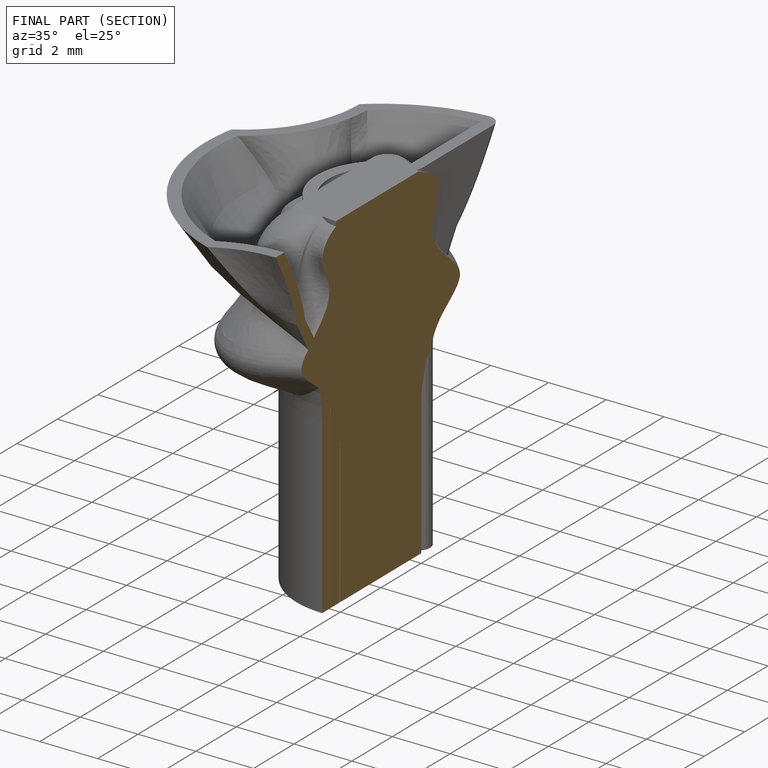
[diagram: finished part — half-section view (interior)]
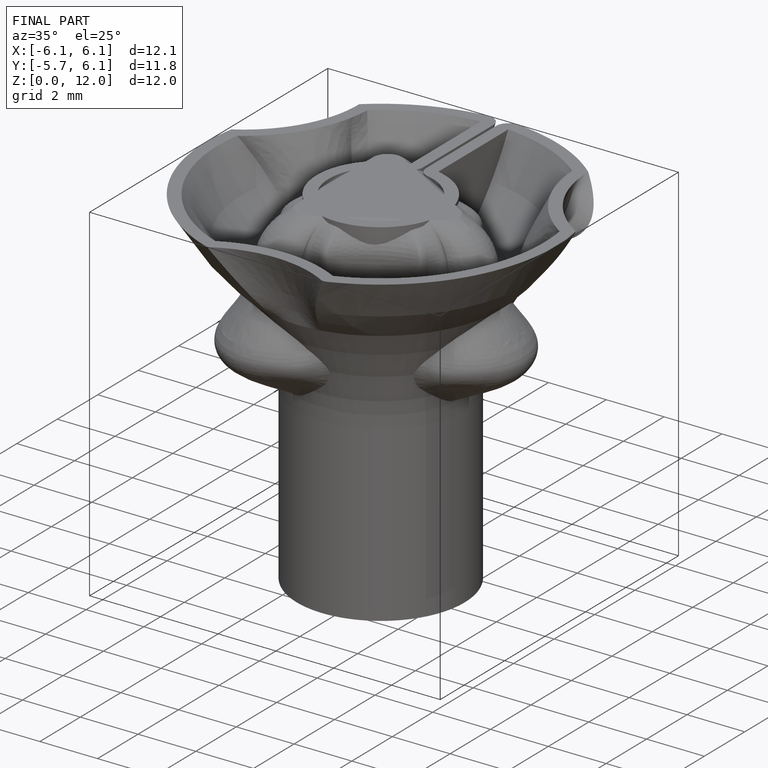
[diagram: finished part — iso view with bounding-box wireframe]
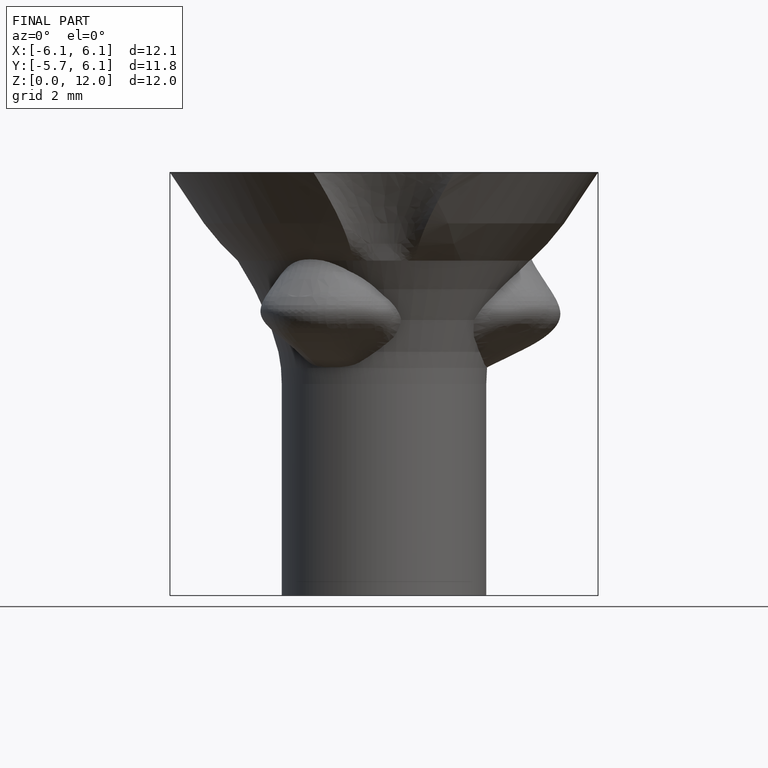
[diagram: finished part — front view with bounding-box wireframe]
